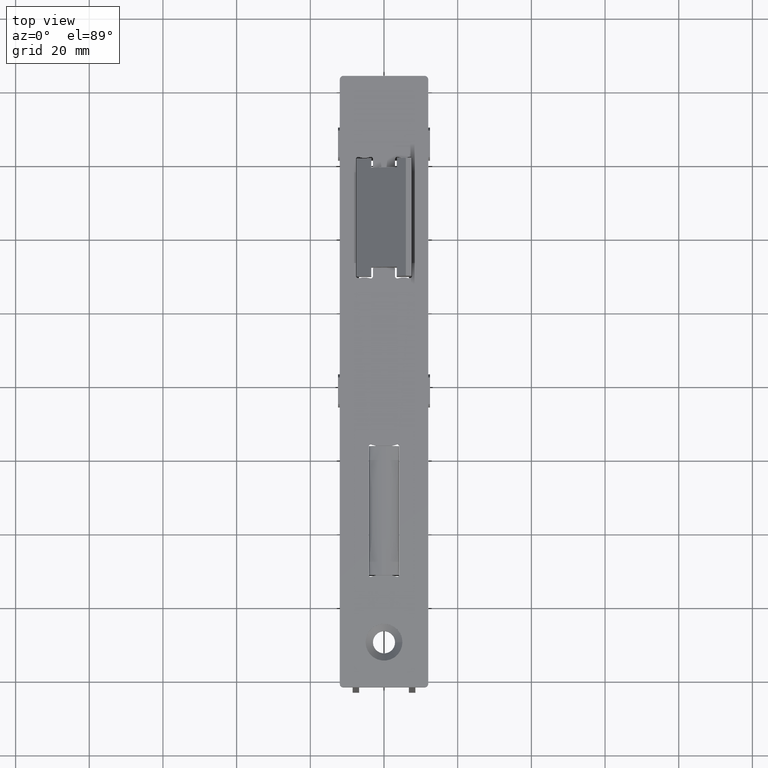
[diagram: clean part render]
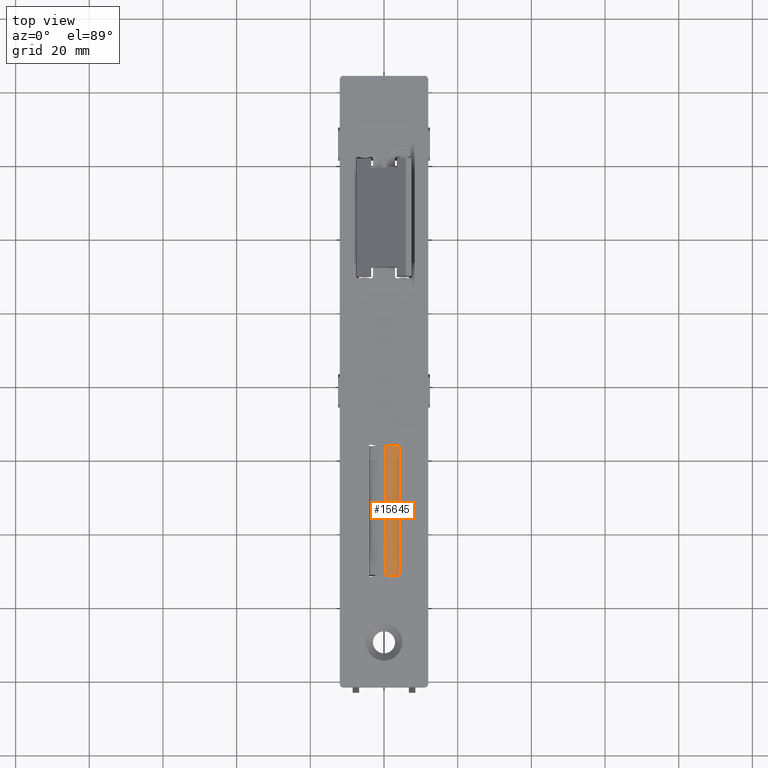
[diagram: same view with one face highlighted and labeled with its STEP entity id]
A machine part, top view. The second image highlights one B-rep face of the part: STEP entity #15645.
In plain terms, the highlighted face is a freeform B-spline surface patch.
Its self-contained STEP definition (entity closure, byte-faithful):
#213 = CARTESIAN_POINT ( 'NONE',  ( 0.5750000000000051736, -17.50000000000000000, 8.500000000000000000 ) ) ;
#343 = CARTESIAN_POINT ( 'NONE',  ( 0.5750000000000011768, 5.833333333333334814, 8.500000000000000000 ) ) ;
#375 = CARTESIAN_POINT ( 'NONE',  ( 4.075000000000004619, -6.416666666666667851, 8.500000000000001776 ) ) ;
#417 = CARTESIAN_POINT ( 'NONE',  ( 2.514155945119104452, -17.49999999999999645, 8.332496698027942017 ) ) ;
#471 = CARTESIAN_POINT ( 'NONE',  ( 3.662337398988512849, -17.50000000000000000, 7.974282811732870790 ) ) ;
#532 = CARTESIAN_POINT ( 'NONE',  ( 3.051310530892175077, -17.50000000000000000, 8.211393244891057819 ) ) ;
#534 = CARTESIAN_POINT ( 'NONE',  ( 0.5749999999999990674, 17.50000000000000000, 8.500000000000000000 ) ) ;
#980 = VERTEX_POINT ( 'NONE', #14246 ) ;
#1364 = CARTESIAN_POINT ( 'NONE',  ( 3.977583848645135589, 17.50000000000000355, 7.734299125358685245 ) ) ;
#1419 = CARTESIAN_POINT ( 'NONE',  ( 2.339196060527724885, 17.50000000000000355, 8.363837099196990366 ) ) ;
#1491 = CARTESIAN_POINT ( 'NONE',  ( 3.797160470117079800, 17.50000000000000000, 7.890469262168329223 ) ) ;
#1599 = CARTESIAN_POINT ( 'NONE',  ( 0.5749999999999992895, 6.416666666666667851, 8.500000000000000000 ) ) ;
#1622 = CARTESIAN_POINT ( 'NONE',  ( 1.486541734633320067, 17.49999999999999645, 8.465506363829671699 ) ) ;
#1657 = CARTESIAN_POINT ( 'NONE',  ( 0.5749999999999992895, 19.25000000000000355, 8.500000000000000000 ) ) ;
#1953 = CARTESIAN_POINT ( 'NONE',  ( 1.567852314196372054, -17.50000000000000355, 8.458940947192429505 ) ) ;
#2090 = CARTESIAN_POINT ( 'NONE',  ( 4.032892997450010952, -17.50000000000000000, 7.656571673233321995 ) ) ;
#2271 = CARTESIAN_POINT ( 'NONE',  ( 4.075000000000001066, 5.833333333333334814, 7.500000000000000888 ) ) ;
#2860 = CARTESIAN_POINT ( 'NONE',  ( 3.985215095217547798, 17.49999999999999645, 7.725089694150566011 ) ) ;
#2944 = CARTESIAN_POINT ( 'NONE',  ( 3.367723810807808249, 17.50000000000000000, 8.102763609029533853 ) ) ;
#3072 = CARTESIAN_POINT ( 'NONE',  ( 0.7363500402859249894, 17.50000000000000355, 8.500000000000003553 ) ) ;
#3104 = CARTESIAN_POINT ( 'NONE',  ( 0.5750000000000049516, -6.416666666666667851, 8.500000000000000000 ) ) ;
#3138 = CARTESIAN_POINT ( 'NONE',  ( 3.378202023060477899, 17.50000000000000000, 8.098782905347011507 ) ) ;
#3338 = CARTESIAN_POINT ( 'NONE',  ( 0.8982414079459769551, -17.50000000000000355, 8.500000000000001776 ) ) ;
#3481 = CARTESIAN_POINT ( 'NONE',  ( 4.075000000000003730, -17.50000000000000000, 7.537108637201688666 ) ) ;
#3542 = CARTESIAN_POINT ( 'NONE',  ( 3.398481451529184572, -17.50000000000000355, 8.090952801103176384 ) ) ;
#3690 = CARTESIAN_POINT ( 'NONE',  ( 4.074999999999999289, 17.50000000000000000, 7.500000000000000888 ) ) ;
#4328 = CARTESIAN_POINT ( 'NONE',  ( 2.646998992954479046, 17.49999999999999645, 8.308222118939733392 ) ) ;
#4404 = CARTESIAN_POINT ( 'NONE',  ( 3.355728408766867954, 17.50000000000000000, 8.107292149309504481 ) ) ;
#4467 = CARTESIAN_POINT ( 'NONE',  ( 4.074999999999999289, 17.50000000000000000, 7.500000000000000888 ) ) ;
#4537 = CARTESIAN_POINT ( 'NONE',  ( 1.504474928163300307, 17.49999999999999645, 8.464112273402314202 ) ) ;
#4615 = CARTESIAN_POINT ( 'NONE',  ( 1.447584734945732254, 17.49999999999999645, 8.468441992439913690 ) ) ;
#4776 = CARTESIAN_POINT ( 'NONE',  ( 4.075000000000000178, 6.416666666666667851, 8.500000000000001776 ) ) ;
#4966 = CARTESIAN_POINT ( 'NONE',  ( 4.075000000000004619, -17.50000000000000000, 7.500000000000000888 ) ) ;
#5092 = CARTESIAN_POINT ( 'NONE',  ( 3.820786339552892930, -17.49999999999999645, 7.874163397565419942 ) ) ;
#5143 = ORIENTED_EDGE ( 'NONE', *, *, #5698, .F. ) ;
#5698 = EDGE_CURVE ( 'NONE', #16467, #11051, #15324, .T. ) ;
#5874 = CARTESIAN_POINT ( 'NONE',  ( 2.457663795885610014, 17.50000000000000000, 8.343013805170800268 ) ) ;
#5933 = CARTESIAN_POINT ( 'NONE',  ( 0.5749999999999990674, 17.50000000000000000, 8.500000000000000000 ) ) ;
#5998 = CARTESIAN_POINT ( 'NONE',  ( 1.693067953909010548, 17.50000000000000000, 8.448917396881778785 ) ) ;
#6080 = CARTESIAN_POINT ( 'NONE',  ( 3.327475341231493466, 17.50000000000000000, 8.117777056901795518 ) ) ;
#6353 = CARTESIAN_POINT ( 'NONE',  ( 4.012511416428474753, -17.50000000000000355, 7.688489905393728563 ) ) ;
#6479 = CARTESIAN_POINT ( 'NONE',  ( 2.323077169840475520, -17.50000000000000000, 8.367781914649931707 ) ) ;
#6555 = CARTESIAN_POINT ( 'NONE',  ( 2.623653966923917835, -17.50000000000000000, 8.311073779542246243 ) ) ;
#6609 = CARTESIAN_POINT ( 'NONE',  ( 2.547329866368050588, -17.50000000000000000, 8.326167516546105318 ) ) ;
#7064 = EDGE_LOOP ( 'NONE', ( #7402, #16665, #5143, #8687 ) ) ;
#7396 = CARTESIAN_POINT ( 'NONE',  ( 3.806566619489676118, 17.50000000000000000, 7.884081256816031669 ) ) ;
#7402 = ORIENTED_EDGE ( 'NONE', *, *, #16421, .F. ) ;
#7484 = CARTESIAN_POINT ( 'NONE',  ( 3.786444490018546105, 17.50000000000000355, 7.897660237105910142 ) ) ;
#7543 = CARTESIAN_POINT ( 'NONE',  ( 3.470473349756098003, 17.49999999999999645, 8.063345065369553311 ) ) ;
#7665 = CARTESIAN_POINT ( 'NONE',  ( 1.252086472809448736, 17.50000000000000355, 8.481603394042494415 ) ) ;
#7871 = CARTESIAN_POINT ( 'NONE',  ( 2.491936977077741311, -17.49999999999999645, 8.336685138360644842 ) ) ;
#7949 = CARTESIAN_POINT ( 'NONE',  ( 3.967429577586556455, -17.50000000000000000, 7.747652645753492884 ) ) ;
#8012 = CARTESIAN_POINT ( 'NONE',  ( 3.461523188730714740, -17.50000000000000000, 8.065707057183848505 ) ) ;
#8067 = CARTESIAN_POINT ( 'NONE',  ( 3.261070808168958113, -17.50000000000000355, 8.144012239229811101 ) ) ;
#8131 = CARTESIAN_POINT ( 'NONE',  ( 1.609530477745330757, -17.50000000000000000, 8.455340661716698847 ) ) ;
#8175 = VERTEX_POINT ( 'NONE', #18582 ) ;
#8687 = ORIENTED_EDGE ( 'NONE', *, *, #14565, .F. ) ;
#8916 = CARTESIAN_POINT ( 'NONE',  ( 3.848586460921741281, 17.50000000000000355, 7.854958949868605877 ) ) ;
#9036 = CARTESIAN_POINT ( 'NONE',  ( 3.375695622063051626, 17.50000000000000000, 8.099736802519624135 ) ) ;
#9152 = CARTESIAN_POINT ( 'NONE',  ( 4.074999999999999289, 19.25000000000000355, 7.500000000000000888 ) ) ;
#9178 = CARTESIAN_POINT ( 'NONE',  ( 2.450428465853693893, 17.50000000000000355, 8.344326455680731058 ) ) ;
#9400 = CARTESIAN_POINT ( 'NONE',  ( 0.5750000000000030642, -5.833333333333334814, 8.500000000000000000 ) ) ;
#9424 = CARTESIAN_POINT ( 'NONE',  ( 4.075000000000004619, -19.25000000000000355, 7.500000000000000888 ) ) ;
#9461 = CARTESIAN_POINT ( 'NONE',  ( 3.829940156251732564, -17.49999999999999645, 7.867612231070719275 ) ) ;
#9518 = CARTESIAN_POINT ( 'NONE',  ( 2.095257168941051962, -17.50000000000000000, 8.403192714044429579 ) ) ;
#9650 = CARTESIAN_POINT ( 'NONE',  ( 2.771975305268945089, -17.50000000000000000, 8.279583718016228389 ) ) ;
#9776 = FACE_OUTER_BOUND ( 'NONE', #7064, .T. ) ;
#9892 = CARTESIAN_POINT ( 'NONE',  ( 4.074999999999999289, 17.50000000000000000, 7.500000000000000888 ) ) ;
#9958 = CARTESIAN_POINT ( 'NONE',  ( 0.5749999999999990674, 17.50000000000000000, 8.500000000000000000 ) ) ;
#10049 = B_SPLINE_CURVE_WITH_KNOTS ( 'NONE', 3,
 ( #213, #9400, #343, #534 ),
 .UNSPECIFIED., .F., .F.,
 ( 4, 4 ),
 ( 0.000000000000000000, 1.000000000000000000 ),
 .UNSPECIFIED. ) ;
#10428 = CARTESIAN_POINT ( 'NONE',  ( 3.589056768777969086, 17.50000000000000000, 8.011348509304138332 ) ) ;
#10505 = CARTESIAN_POINT ( 'NONE',  ( 1.389080209895154683, 17.50000000000000000, 8.472698653924762624 ) ) ;
#10661 = CARTESIAN_POINT ( 'NONE',  ( 4.075000000000001066, 6.416666666666667851, 7.500000000000000888 ) ) ;
#10685 = CARTESIAN_POINT ( 'NONE',  ( 0.9761662841005832592, 17.50000000000000355, 8.495302994223616011 ) ) ;
#10799 = CARTESIAN_POINT ( 'NONE',  ( 4.075000000000004619, -19.25000000000000355, 8.500000000000001776 ) ) ;
#11020 = CARTESIAN_POINT ( 'NONE',  ( 1.671794893746106903, -17.50000000000000000, 8.449783312065139995 ) ) ;
#11051 = VERTEX_POINT ( 'NONE', #3690 ) ;
#11070 = CARTESIAN_POINT ( 'NONE',  ( 4.064249275944687767, -17.50000000000000711, 7.592480520270473043 ) ) ;
#11371 = CARTESIAN_POINT ( 'NONE',  ( 4.075000000000004619, -17.50000000000000000, 7.500000000000000888 ) ) ;
#11384 =( BOUNDED_SURFACE ( )  B_SPLINE_SURFACE ( 2, 3, ( 
 ( #9152, #10661, #13858, #9424 ),
 ( #15315, #4776, #375, #10799 ),
 ( #1657, #1599, #3104, #12247 ) ),
 .UNSPECIFIED., .F., .F., .T. ) 
 B_SPLINE_SURFACE_WITH_KNOTS ( ( 3, 3 ),
 ( 4, 4 ),
 ( 0.000000000000000000, 1.000000000000000000 ),
 ( -0.01925000000000000322, 0.01925000000000000322 ),
 .UNSPECIFIED. ) 
 GEOMETRIC_REPRESENTATION_ITEM ( )  RATIONAL_B_SPLINE_SURFACE ( (
 ( 1.000000000000000000, 1.000000000000000000, 1.000000000000000000, 1.000000000000000000),
 ( 0.7071067811865475727, 0.7071067811865475727, 0.7071067811865475727, 0.7071067811865475727),
 ( 1.000000000000000000, 1.000000000000000000, 1.000000000000000000, 1.000000000000000000) ) ) 
 REPRESENTATION_ITEM ( '' )  SURFACE ( )  );
#11949 = CARTESIAN_POINT ( 'NONE',  ( 3.983286058347930592, 17.50000000000000000, 7.727439539106986999 ) ) ;
#12012 = CARTESIAN_POINT ( 'NONE',  ( 1.936718069191653013, 17.50000000000000000, 8.423605389401865651 ) ) ;
#12070 = CARTESIAN_POINT ( 'NONE',  ( 4.046268830469615274, 17.50000000000000355, 7.648094324018123835 ) ) ;
#12215 = CARTESIAN_POINT ( 'NONE',  ( 2.895000940823674984, 17.50000000000000000, 8.253129667991700558 ) ) ;
#12247 = CARTESIAN_POINT ( 'NONE',  ( 0.5750000000000049516, -19.25000000000000355, 8.500000000000000000 ) ) ;
#12481 = EDGE_CURVE ( 'NONE', #11051, #980, #14441, .T. ) ;
#12489 = CARTESIAN_POINT ( 'NONE',  ( 3.531891636321089045, -17.50000000000000000, 8.035762322405409108 ) ) ;
#12545 = CARTESIAN_POINT ( 'NONE',  ( 1.545340455049992734, -17.50000000000000000, 8.460816990864799436 ) ) ;
#12609 = CARTESIAN_POINT ( 'NONE',  ( 3.425052573371361930, -17.50000000000000000, 8.080480669433603325 ) ) ;
#13485 = CARTESIAN_POINT ( 'NONE',  ( 3.269914021734670051, 17.50000000000000000, 8.138420126509167574 ) ) ;
#13549 = CARTESIAN_POINT ( 'NONE',  ( 2.207313845359371474, 17.50000000000000000, 8.385233412800047859 ) ) ;
#13858 = CARTESIAN_POINT ( 'NONE',  ( 4.075000000000002842, -6.416666666666667851, 7.500000000000000888 ) ) ;
#14160 = CARTESIAN_POINT ( 'NONE',  ( 3.996049370218768715, -17.49999999999999645, 7.711237098521229072 ) ) ;
#14246 = CARTESIAN_POINT ( 'NONE',  ( 4.075000000000004619, -17.50000000000000000, 7.500000000000000888 ) ) ;
#14441 = B_SPLINE_CURVE_WITH_KNOTS ( 'NONE', 3,
 ( #9892, #2271, #19083, #11371 ),
 .UNSPECIFIED., .F., .F.,
 ( 4, 4 ),
 ( 0.000000000000000000, 1.000000000000000000 ),
 .UNSPECIFIED. ) ;
#14565 = EDGE_CURVE ( 'NONE', #8175, #16467, #10049, .T. ) ;
#14929 = CARTESIAN_POINT ( 'NONE',  ( 3.760801677989648706, 17.50000000000000355, 7.914331626671256892 ) ) ;
#15000 = CARTESIAN_POINT ( 'NONE',  ( 3.898796063624234254, 17.49999999999999645, 7.815508467295074979 ) ) ;
#15195 = CARTESIAN_POINT ( 'NONE',  ( 2.431994777129106833, 17.49999999999999645, 8.347646205874278635 ) ) ;
#15315 = CARTESIAN_POINT ( 'NONE',  ( 4.075000000000000178, 19.25000000000000355, 8.500000000000001776 ) ) ;
#15324 = B_SPLINE_CURVE_WITH_KNOTS ( 'NONE', 3,
 ( #5933, #3072, #10685, #7665, #10505, #4615, #1622, #4537, #5998, #12012, #13549, #1419, #16559, #15195, #9178, #5874, #4328, #12215, #18221, #13485, #6080, #4404, #2944, #9036, #3138, #7543, #10428, #16502, #14929, #7484, #1491, #16442, #7396, #8916, #15000, #18094, #19561, #1364, #11949, #2860, #12070, #18018, #4467 ),
 .UNSPECIFIED., .F., .F.,
 ( 4, 1, 1, 1, 2, 2, 1, 1, 1, 1, 2, 2, 1, 1, 1, 1, 1, 2, 2, 1, 1, 1, 1, 2, 2, 1, 1, 1, 2, 2, 4 ),
 ( 0.000000000000000000, 0.1249999999999968914, 0.1874999999999952538, 0.2187499999999944489, 0.2343749999999940048, 0.2499999999999935607, 0.3749999999999903966, 0.4374999999999888423, 0.4687499999999880651, 0.4843749999999879541, 0.4921874999999880651, 0.4999999999999882316, 0.6249999999999896749, 0.6874999999999900080, 0.7187499999999902300, 0.7343749999999905631, 0.7421874999999911182, 0.7460937499999915623, 0.7499999999999920064, 0.8124999999999988898, 0.8437500000000023315, 0.8593750000000039968, 0.8671875000000045519, 0.8710937500000042188, 0.8750000000000038858, 0.9062500000000042188, 0.9218750000000041078, 0.9296875000000038858, 0.9335937500000037748, 0.9375000000000036637, 1.000000000000000000 ),
 .UNSPECIFIED. ) ;
#15549 = CARTESIAN_POINT ( 'NONE',  ( 3.391682287244239813, -17.50000000000000355, 8.093593951351662596 ) ) ;
#15602 = CARTESIAN_POINT ( 'NONE',  ( 3.756506111252030156, -17.50000000000000000, 7.918860303529548617 ) ) ;
#15645 = ADVANCED_FACE ( 'NONE', ( #9776 ), #11384, .T. ) ;
#15660 = CARTESIAN_POINT ( 'NONE',  ( 1.815308725822609048, -17.50000000000000000, 8.435717712812490277 ) ) ;
#15867 = B_SPLINE_CURVE_WITH_KNOTS ( 'NONE', 3,
 ( #4966, #3481, #11070, #2090, #6353, #18570, #14160, #16912, #7949, #16979, #17032, #17170, #9461, #5092, #18637, #15602, #471, #12489, #8012, #12609, #18501, #3542, #15549, #8067, #532, #9650, #6555, #6609, #417, #7871, #18441, #6479, #9518, #15660, #11020, #8131, #1953, #12545, #17100, #3338, #18690 ),
 .UNSPECIFIED., .F., .F.,
 ( 4, 1, 1, 1, 2, 2, 1, 1, 1, 2, 2, 1, 1, 1, 1, 2, 2, 1, 1, 1, 1, 2, 2, 1, 1, 1, 2, 2, 4 ),
 ( 0.000000000000000000, 0.03124999999999313050, 0.04687499999998969574, 0.05468749999998781530, 0.05859374999998712835, 0.06249999999998644140, 0.09374999999998434586, 0.1093749999999832911, 0.1171874999999822642, 0.1210937499999821115, 0.1249999999999819589, 0.1874999999999818479, 0.2187499999999819311, 0.2343749999999817368, 0.2421874999999816258, 0.2460937499999815703, 0.2499999999999815148, 0.3749999999999873990, 0.4374999999999904521, 0.4687499999999920619, 0.4843749999999927280, 0.4921874999999928946, 0.4999999999999931166, 0.6249999999999946709, 0.6874999999999954481, 0.7187499999999956701, 0.7343749999999957812, 0.7499999999999958922, 1.000000000000000000 ),
 .UNSPECIFIED. ) ;
#16421 = EDGE_CURVE ( 'NONE', #980, #8175, #15867, .T. ) ;
#16442 = CARTESIAN_POINT ( 'NONE',  ( 3.804243613186039319, 17.50000000000000355, 7.885665035833206105 ) ) ;
#16467 = VERTEX_POINT ( 'NONE', #9958 ) ;
#16502 = CARTESIAN_POINT ( 'NONE',  ( 3.706960620069241763, 17.50000000000000000, 7.947244197979206781 ) ) ;
#16559 = CARTESIAN_POINT ( 'NONE',  ( 2.404283249883027107, 17.50000000000000355, 8.352586361069926468 ) ) ;
#16665 = ORIENTED_EDGE ( 'NONE', *, *, #12481, .F. ) ;
#16912 = CARTESIAN_POINT ( 'NONE',  ( 3.991689786303831422, -17.49999999999999645, 7.716907065788454645 ) ) ;
#16979 = CARTESIAN_POINT ( 'NONE',  ( 3.929062377900404357, -17.49999999999999645, 7.788196856999711315 ) ) ;
#17032 = CARTESIAN_POINT ( 'NONE',  ( 3.873765199156116168, -17.50000000000000355, 7.834711119882766361 ) ) ;
#17100 = CARTESIAN_POINT ( 'NONE',  ( 1.215215181720894710, -17.50000000000000355, 8.487461437076735393 ) ) ;
#17170 = CARTESIAN_POINT ( 'NONE',  ( 3.843482748339689614, -17.50000000000000000, 7.857771422098243086 ) ) ;
#18018 = CARTESIAN_POINT ( 'NONE',  ( 4.074999999999999289, 17.50000000000000000, 7.574574139107788540 ) ) ;
#18094 = CARTESIAN_POINT ( 'NONE',  ( 3.947194441498357076, 17.50000000000000000, 7.768396609332940628 ) ) ;
#18221 = CARTESIAN_POINT ( 'NONE',  ( 3.150570645036729456, 17.50000000000000355, 8.178399283415108911 ) ) ;
#18441 = CARTESIAN_POINT ( 'NONE',  ( 2.478718872497208014, -17.50000000000000355, 8.339142379151832429 ) ) ;
#18501 = CARTESIAN_POINT ( 'NONE',  ( 3.409146654310746705, -17.50000000000000355, 8.086769627153621798 ) ) ;
#18570 = CARTESIAN_POINT ( 'NONE',  ( 4.002768572753341303, -17.50000000000000000, 7.702141859679402458 ) ) ;
#18582 = CARTESIAN_POINT ( 'NONE',  ( 0.5750000000000051736, -17.50000000000000000, 8.500000000000000000 ) ) ;
#18637 = CARTESIAN_POINT ( 'NONE',  ( 3.814878032308853140, -17.49999999999999645, 7.878315517410940494 ) ) ;
#18690 = CARTESIAN_POINT ( 'NONE',  ( 0.5750000000000051736, -17.50000000000000000, 8.500000000000000000 ) ) ;
#19083 = CARTESIAN_POINT ( 'NONE',  ( 4.075000000000002842, -5.833333333333334814, 7.500000000000000888 ) ) ;
#19561 = CARTESIAN_POINT ( 'NONE',  ( 3.968848757449060738, 17.50000000000000355, 7.744569106611950637 ) ) ;